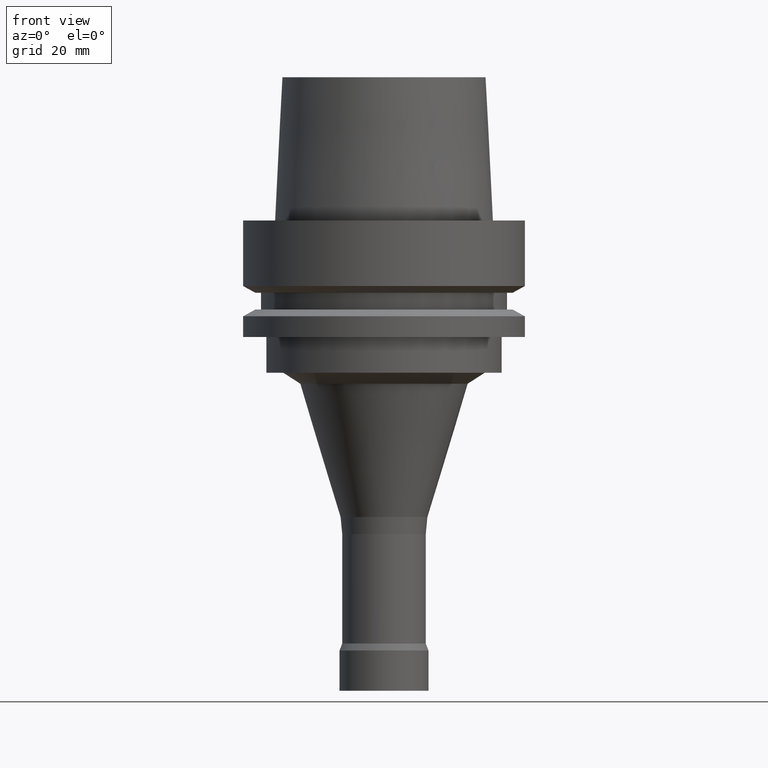
[diagram: clean part render]
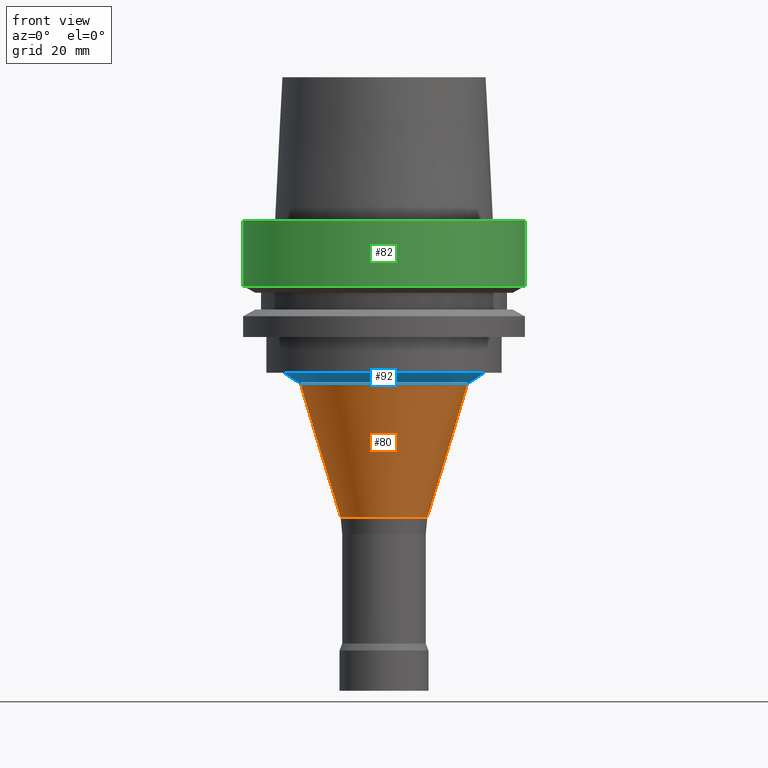
[diagram: same view with three faces highlighted in distinct colors, each labeled with its STEP entity id]
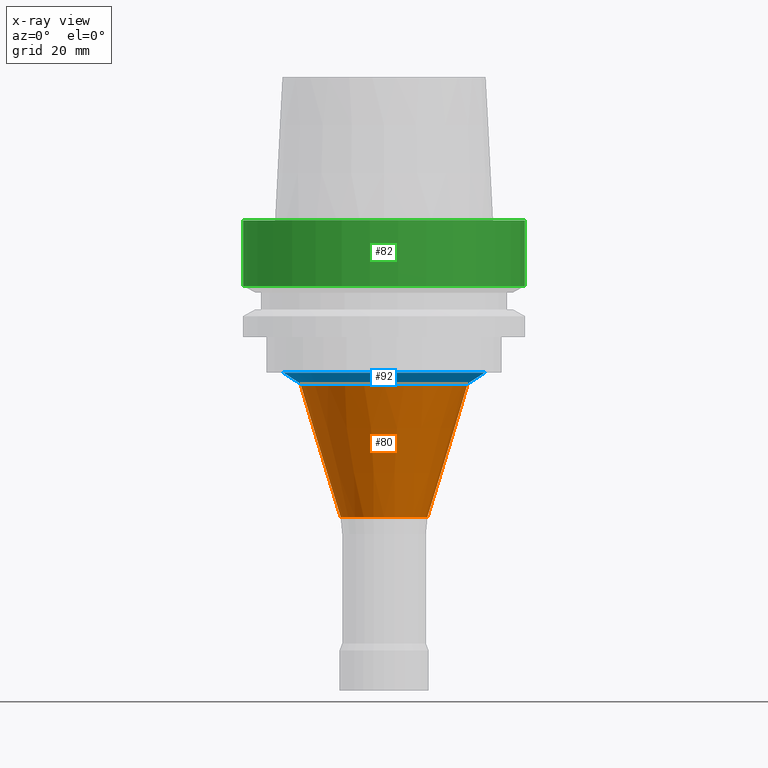
[diagram: x-ray of the same camera — body ghosted, the three highlighted faces saturated]
A machine part, front view with three faces highlighted in distinct colors.
The next image is the same camera in x-ray (body ghosted, the three faces saturated) — at least one of them is partly hidden behind the body in this view.
Their STEP definitions:

[orange] entity #80 — the highlighted conical surface has half-angle 16.919 deg.
#80=ADVANCED_FACE('',(#110,#111),#112,.T.);
#110=FACE_BOUND('',#168,.T.);
#111=FACE_BOUND('',#169,.T.);
#112=CONICAL_SURFACE('',#170,14.2899100072215,0.295287259812426);
#168=EDGE_LOOP('',(#236));
#169=EDGE_LOOP('',(#237));
#170=AXIS2_PLACEMENT_3D('',#238,#239,#240);
#236=ORIENTED_EDGE('',*,*,#311,.F.);
#237=ORIENTED_EDGE('',*,*,#315,.T.);
#238=CARTESIAN_POINT('',(3.14243824586494E-015,6.28487649172987E-015,-51.3199111458557));
#239=DIRECTION('',(-6.12323399573677E-017,-1.22464679914735E-016,1.0));
#240=DIRECTION('',(-1.23259516440783E-032,1.0,1.22464679914735E-016));
#311=EDGE_CURVE('',#331,#331,#332,.T.);
#315=EDGE_CURVE('',#339,#339,#340,.T.);
#331=VERTEX_POINT('',#369);
#332=CIRCLE('',#370,9.76542953707283);
#339=VERTEX_POINT('',#377);
#340=CIRCLE('',#378,18.8143904773702);
#369=CARTESIAN_POINT('',(4.05322954692044E-015,9.76542953707284,-66.1942618842013));
#370=AXIS2_PLACEMENT_3D('',#408,#409,#410);
#377=CARTESIAN_POINT('',(2.23164694480944E-015,18.8143904773702,-36.4455604075101));
#378=AXIS2_PLACEMENT_3D('',#420,#421,#422);
#408=CARTESIAN_POINT('',(4.05322954692044E-015,8.10645909384088E-015,-66.1942618842013));
#409=DIRECTION('',(6.12323399573677E-017,1.22464679914735E-016,-1.0));
#410=DIRECTION('',(-1.23259516440783E-032,1.0,1.22464679914735E-016));
#420=CARTESIAN_POINT('',(2.23164694480944E-015,4.46329388961887E-015,-36.4455604075101));
#421=DIRECTION('',(6.12323399573677E-017,1.22464679914735E-016,-1.0));
#422=DIRECTION('',(-1.23259516440783E-032,1.0,1.22464679914735E-016));

[blue] entity #92 — the highlighted conical surface has half-angle 56.434 deg.
#92=ADVANCED_FACE('',(#146,#147),#148,.T.);
#146=FACE_BOUND('',#204,.T.);
#147=FACE_BOUND('',#205,.T.);
#148=CONICAL_SURFACE('',#206,20.6571958523526,0.984959532442561);
#204=EDGE_LOOP('',(#296));
#205=EDGE_LOOP('',(#297));
#206=AXIS2_PLACEMENT_3D('',#298,#299,#300);
#296=ORIENTED_EDGE('',*,*,#315,.F.);
#297=ORIENTED_EDGE('',*,*,#327,.T.);
#298=CARTESIAN_POINT('',(2.15677325167997E-015,4.31354650335994E-015,-35.222780203755));
#299=DIRECTION('',(-6.12323399573677E-017,-1.22464679914735E-016,1.0));
#300=DIRECTION('',(-1.23259516440783E-032,1.0,1.22464679914735E-016));
#315=EDGE_CURVE('',#339,#339,#340,.T.);
#327=EDGE_CURVE('',#363,#363,#364,.T.);
#339=VERTEX_POINT('',#377);
#340=CIRCLE('',#378,18.8143904773702);
#363=VERTEX_POINT('',#401);
#364=CIRCLE('',#402,22.500001227335);
#377=CARTESIAN_POINT('',(2.23164694480944E-015,18.8143904773702,-36.4455604075101));
#378=AXIS2_PLACEMENT_3D('',#420,#421,#422);
#401=CARTESIAN_POINT('',(2.0818995585505E-015,22.500001227335,-34.0));
#402=AXIS2_PLACEMENT_3D('',#456,#457,#458);
#420=CARTESIAN_POINT('',(2.23164694480944E-015,4.46329388961887E-015,-36.4455604075101));
#421=DIRECTION('',(6.12323399573677E-017,1.22464679914735E-016,-1.0));
#422=DIRECTION('',(-1.23259516440783E-032,1.0,1.22464679914735E-016));
#456=CARTESIAN_POINT('',(2.0818995585505E-015,4.163799117101E-015,-34.0));
#457=DIRECTION('',(6.12323399573677E-017,1.22464679914735E-016,-1.0));
#458=DIRECTION('',(-1.23259516440783E-032,1.0,1.22464679914735E-016));

[green] entity #82 — the highlighted cylindrical surface (bore or boss wall) has radius 31.5 mm, axis along (-0, -0, 1).
#82=ADVANCED_FACE('',(#116,#117),#118,.T.);
#116=FACE_BOUND('',#174,.T.);
#117=FACE_BOUND('',#175,.T.);
#118=CYLINDRICAL_SURFACE('',#176,31.5);
#174=EDGE_LOOP('',(#246));
#175=EDGE_LOOP('',(#247));
#176=AXIS2_PLACEMENT_3D('',#248,#249,#250);
#246=ORIENTED_EDGE('',*,*,#318,.F.);
#247=ORIENTED_EDGE('',*,*,#316,.T.);
#248=CARTESIAN_POINT('',(4.47684973986342E-016,8.95369947972684E-016,-7.311250465));
#249=DIRECTION('',(-6.12323399573677E-017,-1.22464679914735E-016,1.0));
#250=DIRECTION('',(-1.23259516440783E-032,1.0,1.22464679914735E-016));
#316=EDGE_CURVE('',#341,#341,#342,.T.);
#318=EDGE_CURVE('',#345,#345,#346,.T.);
#341=VERTEX_POINT('',#379);
#342=CIRCLE('',#380,31.5);
#345=VERTEX_POINT('',#383);
#346=CIRCLE('',#384,31.5);
#379=CARTESIAN_POINT('',(-3.8214424279273E-031,31.5,3.75763741731416E-015));
#380=AXIS2_PLACEMENT_3D('',#423,#424,#425);
#383=CARTESIAN_POINT('',(8.95369947972684E-016,31.5,-14.62250093));
#384=AXIS2_PLACEMENT_3D('',#429,#430,#431);
#423=CARTESIAN_POINT('',(0.0,0.0,0.0));
#424=DIRECTION('',(6.12323399573677E-017,1.22464679914735E-016,-1.0));
#425=DIRECTION('',(-1.23259516440783E-032,1.0,1.22464679914735E-016));
#429=CARTESIAN_POINT('',(8.95369947972685E-016,1.79073989594537E-015,-14.62250093));
#430=DIRECTION('',(6.12323399573677E-017,1.22464679914735E-016,-1.0));
#431=DIRECTION('',(-1.23259516440783E-032,1.0,1.22464679914735E-016));